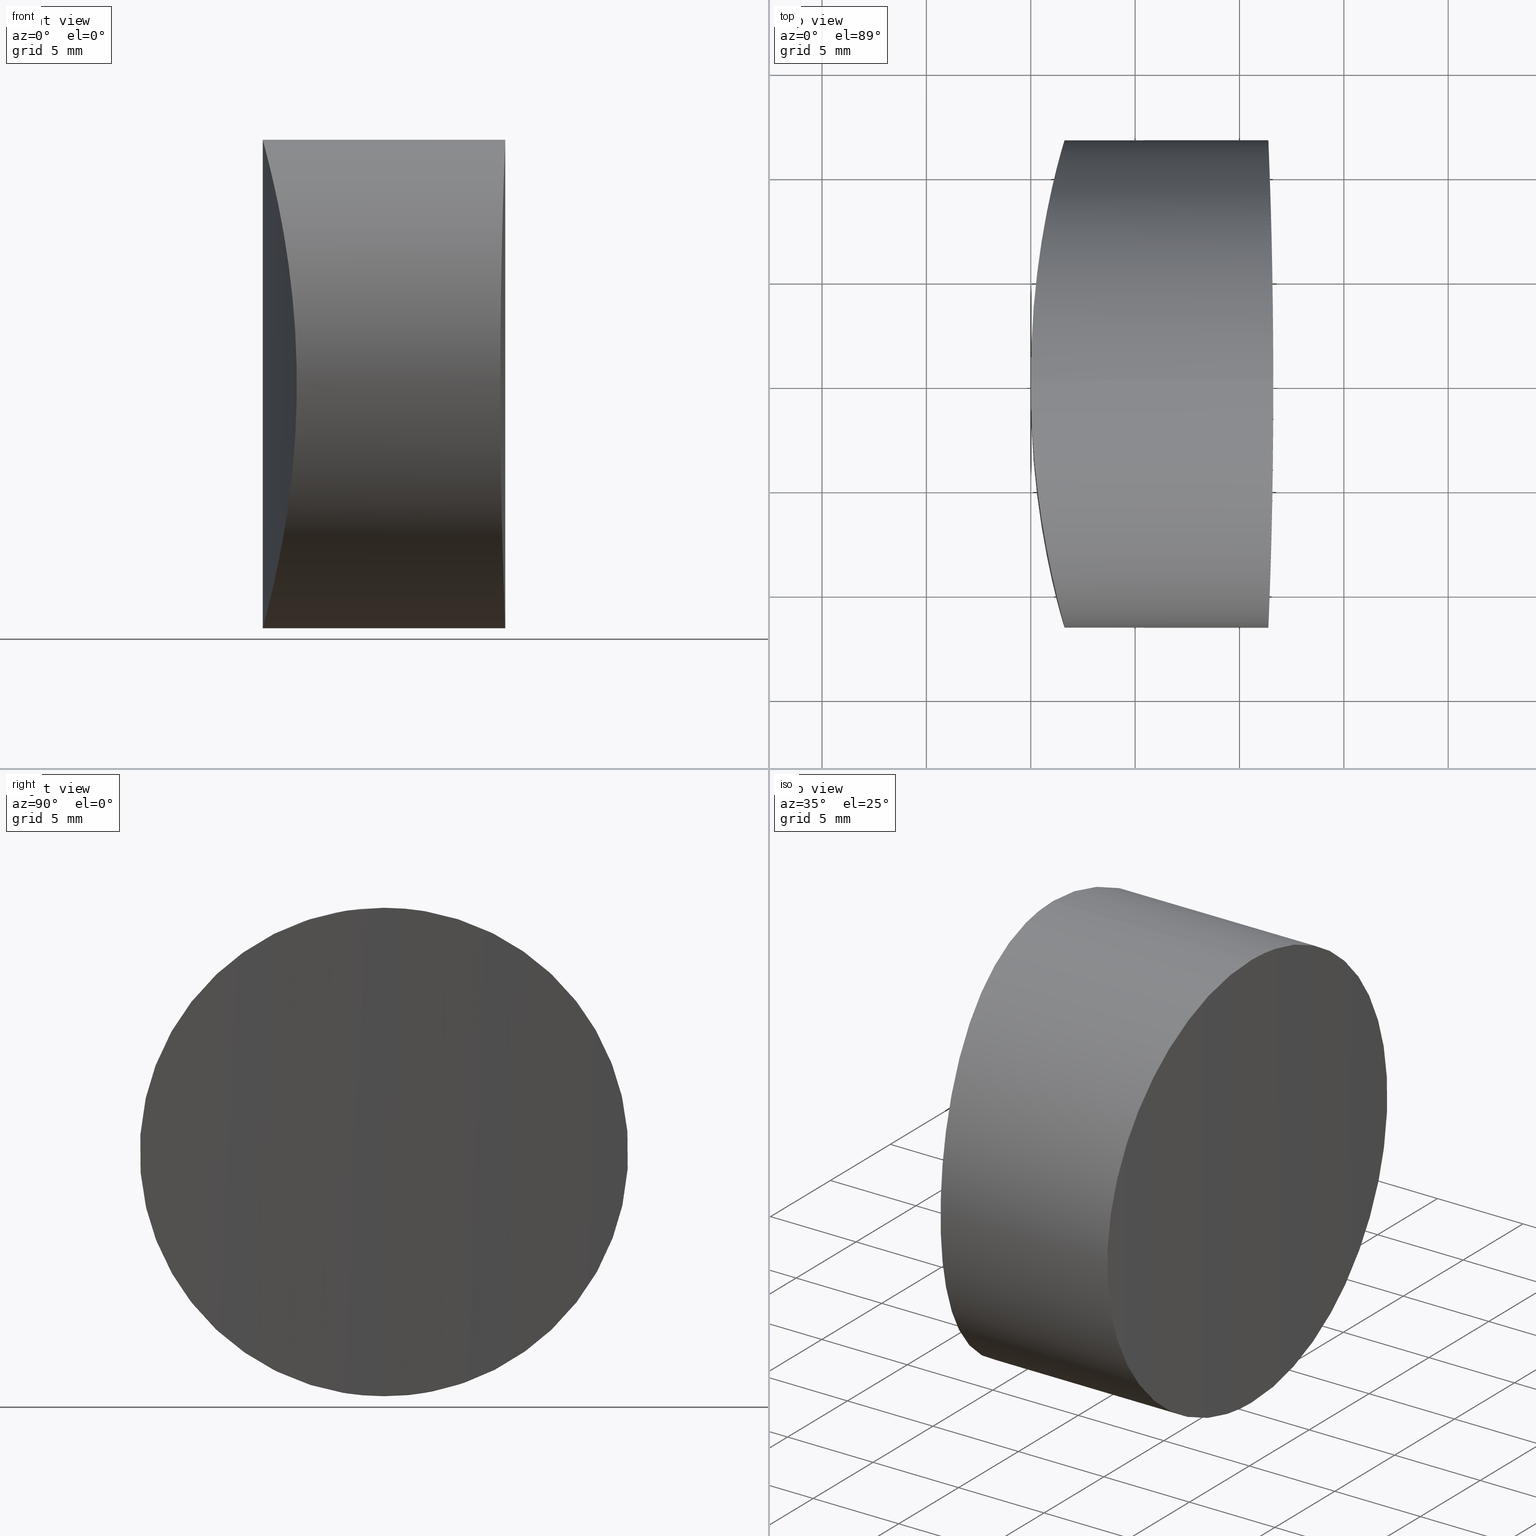
[diagram: canonical four-view strip — front | top / right | iso, engineering-drawing reading convention]
A machine part, canonical four-view strip (front | top / right | iso — engineering-drawing reading convention). The complete STEP part file that produces these views, byte-faithful:
ISO-10303-21;
HEADER;
FILE_DESCRIPTION (( 'STEP AP203' ),
    '1' );
FILE_NAME ('159016.STEP',
    '2024-12-10T03:03:37',
    ( '' ),
    ( '' ),
    'SwSTEP 2.0',
    'SolidWorks 2020',
    '' );
FILE_SCHEMA (( 'CONFIG_CONTROL_DESIGN' ));
ENDSEC;

DATA;
#1 = CARTESIAN_POINT ( 'NONE',  ( 11.50834122666624282, -8.000445361001547795, 20.24566114425831032 ) ) ;
#2 = CARTESIAN_POINT ( 'NONE',  ( 11.62000000000002586, -0.7726043555792642126, 23.39999999999999503 ) ) ;
#3 = CARTESIAN_POINT ( 'NONE',  ( 0.3116643519996714629, -5.198488700896360726, 1.190362278175256749 ) ) ;
#4 = APPROVAL_PERSON_ORGANIZATION ( #310, #93, #198 ) ;
#5 = FACE_OUTER_BOUND ( 'NONE', #322, .T. ) ;
#6 = CARTESIAN_POINT ( 'NONE',  ( 0.02115179972341110770, -1.539396594609847346, 0.07653723740194499914 ) ) ;
#7 = CARTESIAN_POINT ( 'NONE',  ( 11.48476533640021913, -8.802847334992053518, 3.983236644855716158 ) ) ;
#8 = CARTESIAN_POINT ( 'NONE',  ( 0.02116038784417108298, -1.543215929523041430, 23.32345793427557012 ) ) ;
#9 = CARTESIAN_POINT ( 'NONE',  ( 0.02114948640971029900, 1.539313051746196814, 23.32347106185544661 ) ) ;
#10 = VERTEX_POINT ( 'NONE', #57 ) ;
#11 = PERSON_AND_ORGANIZATION ( #233, #117 ) ;
#12 = CARTESIAN_POINT ( 'NONE',  ( 1.218692900598582263, 10.13031043477039717, 17.56618085616235092 ) ) ;
#13 = CARTESIAN_POINT ( 'NONE',  ( 1.221814119183032732, -10.15072585469899202, 17.56811078998464026 ) ) ;
#14 = CARTESIAN_POINT ( 'NONE',  ( 11.51615761494557688, 7.716763068330194208, 2.897152389055930310 ) ) ;
#15 = LINE ( 'NONE', #354, #210 ) ;
#16 = CARTESIAN_POINT ( 'NONE',  ( 1.522361716051486402, -11.30055644154991867, 8.644748249691609487 ) ) ;
#17 = CARTESIAN_POINT ( 'NONE',  ( 11.53160617311855418, 7.120677190864826756, 2.408363187374036762 ) ) ;
#18 = CARTESIAN_POINT ( 'NONE',  ( 0.8626793191239651160, 8.544097108817332753, 3.697979493518696259 ) ) ;
#19 = CARTESIAN_POINT ( 'NONE',  ( 0.000000000000000000, 0.000000000000000000, 0.000000000000000000 ) ) ;
#20 = CARTESIAN_POINT ( 'NONE',  ( 11.42698976765459129, 10.51596331414600272, 16.88574715239465718 ) ) ;
#21 = DIRECTION ( 'NONE',  ( 0.000000000000000000, 0.000000000000000000, 1.000000000000000000 ) ) ;
#22 = CARTESIAN_POINT ( 'NONE',  ( 1.021114225973074330, 9.285482889198734213, 4.571445310416136110 ) ) ;
#23 = APPROVAL_ROLE ( '' ) ;
#24 = CC_DESIGN_APPROVAL ( #252, ( #331 ) ) ;
#25 = APPLICATION_CONTEXT ( 'configuration controlled 3d designs of mechanical parts and assemblies' ) ;
#26 = CC_DESIGN_PERSON_AND_ORGANIZATION_ASSIGNMENT ( #62, #348, ( #331 ) ) ;
#27 = CARTESIAN_POINT ( 'NONE',  ( 11.56079088785816289, 5.857446924342490036, 1.543023094200554057 ) ) ;
#28 = CARTESIAN_POINT ( 'NONE',  ( 11.55325851795774028, -6.190341427076928582, 1.764335512864516176 ) ) ;
#29 = CARTESIAN_POINT ( 'NONE',  ( 11.39308593814373793, -11.39769493783963483, 14.37040233746650664 ) ) ;
#30 = ADVANCED_FACE ( 'NONE', ( #5 ), #231, .T. ) ;
#31 = CARTESIAN_POINT ( 'NONE',  ( 11.40532295411183483, -11.08654240936753155, 7.941557677430229667 ) ) ;
#32 = CARTESIAN_POINT ( 'NONE',  ( 11.41036888833714968, -10.95595335955898442, 7.576415337182124787 ) ) ;
#33 = CC_DESIGN_SECURITY_CLASSIFICATION ( #320, ( #74 ) ) ;
#34 = CARTESIAN_POINT ( 'NONE',  ( 11.56079088785828013, -5.857446924342498917, 21.85697690579944563 ) ) ;
#35 = CARTESIAN_POINT ( 'NONE',  ( 0.3116326326036396588, 5.198225801661237711, 22.20976484781792237 ) ) ;
#36 = CARTESIAN_POINT ( 'NONE',  ( 0.7029013807431773175, -7.721563527596935650, 2.901477486518047932 ) ) ;
#37 = AXIS2_PLACEMENT_3D ( 'NONE', #52, #83, #21 ) ;
#38 = CARTESIAN_POINT ( 'NONE',  ( 1.020827543885018729, -9.291257141828978661, 4.547890616966048682 ) ) ;
#39 = COORDINATED_UNIVERSAL_TIME_OFFSET ( 8, 0, .AHEAD. ) ;
#40 = CARTESIAN_POINT ( 'NONE',  ( 1.020747586187598310, 9.290898770119232708, 18.85256965556117592 ) ) ;
#41 = CARTESIAN_POINT ( 'NONE',  ( 1.549607479163048973, -11.39904056826204481, 14.36420531174572268 ) ) ;
#42 = CARTESIAN_POINT ( 'NONE',  ( 11.44012078059676796, 10.15697506044739740, 17.55744998751557162 ) ) ;
#43 = CARTESIAN_POINT ( 'NONE',  ( 0.08153112641984214259, 2.664000721158894081, 23.09908949025892611 ) ) ;
#44 = CARTESIAN_POINT ( 'NONE',  ( 0.2005415466080526232, 4.148546924852759332, 0.7535663226522079094 ) ) ;
#45 = CARTESIAN_POINT ( 'NONE',  ( 1.350191257869729489, 10.65380167925032673, 16.55090322725281382 ) ) ;
#46 = DIRECTION ( 'NONE',  ( 0.000000000000000000, 0.000000000000000000, 1.000000000000000000 ) ) ;
#47 = CARTESIAN_POINT ( 'NONE',  ( 0.1078927249292253865, 3.055759509700266552, 0.3995776518490129492 ) ) ;
#48 = CARTESIAN_POINT ( 'NONE',  ( 1.612240629715262052, 11.62354974842927824, 10.16129380057670240 ) ) ;
#49 = ADVANCED_BREP_SHAPE_REPRESENTATION ( '159016', ( #77, #296 ), #116 ) ;
#50 = DIRECTION ( 'NONE',  ( 1.000000000000000000, 0.000000000000000000, 0.000000000000000000 ) ) ;
#51 = CARTESIAN_POINT ( 'NONE',  ( 1.461367988624717507, 11.07591200583148883, 15.48962973388129960 ) ) ;
#52 = CARTESIAN_POINT ( 'NONE',  ( 23.39999999999999858, -6.222475526406026341E-15, 11.69999999999999751 ) ) ;
#53 = CALENDAR_DATE ( 2024, 10, 12 ) ;
#54 = B_SPLINE_CURVE_WITH_KNOTS ( 'NONE', 3,
 ( #200, #145, #6, #283, #61, #286, #124, #3, #319, #65, #232, #36, #357, #181, #38, #325, #76, #152, #206, #174, #126, #16, #102, #265, #297, #158, #360, #41, #108, #155, #353, #267, #13, #211, #329, #204, #291, #79, #269, #133, #214, #292, #150, #72, #98, #71, #68, #8, #129, #323 ),
 .UNSPECIFIED., .F., .F.,
 ( 4, 2, 2, 2, 2, 2, 2, 2, 2, 2, 2, 2, 2, 2, 2, 2, 2, 2, 2, 2, 2, 2, 2, 2, 4 ),
 ( 0.01836548850541894554, 0.02066126398292433136, 0.02180915172167702254, 0.02295703946042971372, 0.02525281493793509954, 0.02640070267668779072, 0.02754859041544047843, 0.02984436589294586079, 0.03099225363169855196, 0.03214014137045124314, 0.03328802910920393432, 0.03443591684795662550, 0.03673169232546200091, 0.03902746780296738327, 0.04017535554172008139, 0.04132324328047276563, 0.04361901875797814798, 0.04476690649673083916, 0.04591479423548353034, 0.04821056971298891269, 0.04935845745174159693, 0.05050634519049428117, 0.05165423292924697929, 0.05280212066799966353, 0.05509789614550504588 ),
 .UNSPECIFIED. ) ;
#55 = CARTESIAN_POINT ( 'NONE',  ( 0.5985449417980786002, 7.153556633235333528, 2.409837950342180957 ) ) ;
#56 = CARTESIAN_POINT ( 'NONE',  ( 11.39684395755928392, 11.30325945933214626, 8.654900918863649650 ) ) ;
#57 = CARTESIAN_POINT ( 'NONE',  ( 2.825357735624603731E-15, 0.000000000000000000, 23.39999999999999858 ) ) ;
#58 = CARTESIAN_POINT ( 'NONE',  ( 11.62000000000001876, -6.222475526406026341E-15, 23.39999999999999858 ) ) ;
#59 = EDGE_CURVE ( 'NONE', #199, #97, #153, .T. ) ;
#60 = CARTESIAN_POINT ( 'NONE',  ( 11.39661587952665833, -11.30902880729543192, 8.676231040150291562 ) ) ;
#61 = CARTESIAN_POINT ( 'NONE',  ( 0.1064519128507704498, -3.035780601069037132, 0.3941506981484312888 ) ) ;
#62 = PERSON_AND_ORGANIZATION ( #233, #117 ) ;
#63 = ORIENTED_EDGE ( 'NONE', *, *, #289, .F. ) ;
#64 = EDGE_LOOP ( 'NONE', ( #63, #318, #317, #127 ) ) ;
#65 = CARTESIAN_POINT ( 'NONE',  ( 0.5469979845961249199, -6.820285741709247951, 2.185839507605463528 ) ) ;
#66 = EDGE_CURVE ( 'NONE', #199, #10, #15, .T. ) ;
#67 = CARTESIAN_POINT ( 'NONE',  ( 11.49258236131441535, -8.545661225290622554, 3.699554750029844463 ) ) ;
#68 = CARTESIAN_POINT ( 'NONE',  ( 0.08243284053290254876, -2.678904931896245678, 23.09572467220113623 ) ) ;
#69 = ORIENTED_EDGE ( 'NONE', *, *, #171, .T. ) ;
#70 = PRODUCT_DEFINITION_SHAPE ( 'NONE', 'NONE',  #331 ) ;
#71 = CARTESIAN_POINT ( 'NONE',  ( 0.1078811615868372209, -3.055596207715884916, 23.00046582037515464 ) ) ;
#72 = CARTESIAN_POINT ( 'NONE',  ( 0.2005206989076388779, -4.148331975707988839, 22.64651442230587719 ) ) ;
#73 = APPROVAL_STATUS ( 'not_yet_approved' ) ;
#74 = PRODUCT_DEFINITION_FORMATION_WITH_SPECIFIED_SOURCE ( '�κ�', '', #284, .NOT_KNOWN. ) ;
#75 = CARTESIAN_POINT ( 'NONE',  ( 0.7558190034718494932, 8.003059787080228915, 20.24312312701330541 ) ) ;
#76 = CARTESIAN_POINT ( 'NONE',  ( 1.218775036194221340, -10.13064655305768547, 5.834398369266911466 ) ) ;
#77 = MANIFOLD_SOLID_BREP ( '�г�-����1', #315 ) ;
#78 = CARTESIAN_POINT ( 'NONE',  ( 11.38087361875267334, 11.70000080604043369, 10.92740899479687045 ) ) ;
#79 = CARTESIAN_POINT ( 'NONE',  ( 0.7036711933648762685, -7.739240291017467577, 20.50737220546450601 ) ) ;
#80 = CARTESIAN_POINT ( 'NONE',  ( 11.53146966886117042, 7.148536806155499690, 20.99405426441436973 ) ) ;
#81 = LINE ( 'NONE', #107, #146 ) ;
#82 = CARTESIAN_POINT ( 'NONE',  ( 11.39293185485684390, 11.40155386496813428, 14.35324159360317964 ) ) ;
#83 = DIRECTION ( 'NONE',  ( -1.000000000000000000, 0.000000000000000000, 0.000000000000000000 ) ) ;
#84 = CC_DESIGN_PERSON_AND_ORGANIZATION_ASSIGNMENT ( #246, #164, ( #74 ) ) ;
#85 = PERSON_AND_ORGANIZATION_ROLE ( 'design_owner' ) ;
#86 = CC_DESIGN_PERSON_AND_ORGANIZATION_ASSIGNMENT ( #138, #85, ( #284 ) ) ;
#87 = PERSON_AND_ORGANIZATION ( #233, #117 ) ;
#88 = CARTESIAN_POINT ( 'NONE',  ( 0.02116270335229388302, 1.543299897903277484, 0.07655036568056472479 ) ) ;
#89 = DATE_AND_TIME ( #254, #104 ) ;
#90 = CARTESIAN_POINT ( 'NONE',  ( 11.60404212273296842, -3.045106953394411953, 0.3967426779261322145 ) ) ;
#91 = APPROVAL_STATUS ( 'not_yet_approved' ) ;
#92 = CARTESIAN_POINT ( 'NONE',  ( 11.41552253628786673, -10.82245619300337758, 16.19429616134717875 ) ) ;
#93 = APPROVAL ( #91, 'δָ��' ) ;
#94 = CARTESIAN_POINT ( 'NONE',  ( 11.38087368467681060, -11.69999919394684973, 10.92738458188363992 ) ) ;
#95 = CARTESIAN_POINT ( 'NONE',  ( 11.38400256966155233, -11.62421625465258224, 13.23674676673737949 ) ) ;
#96 = CARTESIAN_POINT ( 'NONE',  ( 11.60427020165491641, -3.023761266420981197, 23.00903088140642083 ) ) ;
#97 = VERTEX_POINT ( 'NONE', #149 ) ;
#98 = CARTESIAN_POINT ( 'NONE',  ( 0.1668844223539996119, -3.789355694864593893, 22.77600918019988896 ) ) ;
#99 = DATE_AND_TIME ( #130, #327 ) ;
#100 = CARTESIAN_POINT ( 'NONE',  ( 0.1994240046638298403, 4.137282552904039790, 22.65077943517297143 ) ) ;
#101 = DIRECTION ( 'NONE',  ( -1.000000000000000000, 0.000000000000000000, 0.000000000000000000 ) ) ;
#102 = CARTESIAN_POINT ( 'NONE',  ( 1.548705905361870583, -11.39579333191930210, 9.021389577117204794 ) ) ;
#103 = CARTESIAN_POINT ( 'NONE',  ( 11.61687543374016052, 1.532289136282803277, 0.07577626139362167446 ) ) ;
#104 = LOCAL_TIME ( 11, 3, 37.00000000000000000, #222 ) ;
#105 = CARTESIAN_POINT ( 'NONE',  ( 1.308349711008734761, 10.49062129808797117, 16.89443280080960008 ) ) ;
#106 = CARTESIAN_POINT ( 'NONE',  ( 0.1669019346921626346, 3.789553965936834246, 0.6240579557779247777 ) ) ;
#107 = CARTESIAN_POINT ( 'NONE',  ( 23.39999999999999858, -4.789638771403623845E-15, -1.734723475976807094E-15 ) ) ;
#108 = CARTESIAN_POINT ( 'NONE',  ( 1.523814740385370126, -11.30584735335096092, 14.73577845390030205 ) ) ;
#109 = CARTESIAN_POINT ( 'NONE',  ( 11.57327940585887482, 5.183483643176358235, 22.19609269913008021 ) ) ;
#110 = CARTESIAN_POINT ( 'NONE',  ( 11.41552228528090218, 10.82245604794576543, 7.205703894495782080 ) ) ;
#111 = CARTESIAN_POINT ( 'NONE',  ( 1.221896367787552506, 10.15106140769250054, 5.832464699973532340 ) ) ;
#112 = DATE_AND_TIME ( #335, #166 ) ;
#113 = DIRECTION ( 'NONE',  ( 0.000000000000000000, 0.000000000000000000, 1.000000000000000000 ) ) ;
#114 = UNCERTAINTY_MEASURE_WITH_UNIT (LENGTH_MEASURE( 1.000000000000000082E-05 ), #189, 'distance_accuracy_value', 'NONE');
#115 = LINE ( 'NONE', #247, #368 ) ;
#116 =( GEOMETRIC_REPRESENTATION_CONTEXT ( 3 ) GLOBAL_UNCERTAINTY_ASSIGNED_CONTEXT ( ( #114 ) ) GLOBAL_UNIT_ASSIGNED_CONTEXT ( ( #189, #245, #273 ) ) REPRESENTATION_CONTEXT ( 'NONE', 'WORKASPACE' ) );
#117 = ORGANIZATION ( 'δָ��', 'δָ��', '' ) ;
#118 = CARTESIAN_POINT ( 'NONE',  ( 11.59556918225623789, -3.758435733865214790, 22.78654466041231430 ) ) ;
#119 = CARTESIAN_POINT ( 'NONE',  ( 11.44012078059702908, -10.15697506044741516, 5.842550012484416300 ) ) ;
#120 = CARTESIAN_POINT ( 'NONE',  ( 11.60404212273291868, 3.045106953394405735, 23.00325732207386764 ) ) ;
#121 = CARTESIAN_POINT ( 'NONE',  ( 11.51615761494572787, -7.716763068330204867, 20.50284761094407315 ) ) ;
#122 = CC_DESIGN_APPROVAL ( #302, ( #74 ) ) ;
#123 = CARTESIAN_POINT ( 'NONE',  ( 11.39684395755951662, -11.30325945933216047, 14.74509908113634893 ) ) ;
#124 = CARTESIAN_POINT ( 'NONE',  ( 0.1994450068612352300, -4.137499626896718574, 0.7493018810777755112 ) ) ;
#125 = CARTESIAN_POINT ( 'NONE',  ( 11.59052655248877528, -4.123578688067463638, 22.65595562849646072 ) ) ;
#126 = CARTESIAN_POINT ( 'NONE',  ( 1.461437354802844757, -11.07617006637357449, 7.911122091279811031 ) ) ;
#127 = ORIENTED_EDGE ( 'NONE', *, *, #66, .F. ) ;
#128 = CARTESIAN_POINT ( 'NONE',  ( 0.1064405045159608348, 3.035618192479681454, 23.00589216645595414 ) ) ;
#129 = CARTESIAN_POINT ( 'NONE',  ( 2.801984989517225522E-15, -0.7765011190128663365, 23.40000000000000213 ) ) ;
#130 = CALENDAR_DATE ( 2024, 10, 12 ) ;
#131 = CARTESIAN_POINT ( 'NONE',  ( 0.4507289748297408916, 6.196165611642835636, 1.767973390765267272 ) ) ;
#132 = CARTESIAN_POINT ( 'NONE',  ( 11.48476533640005393, 8.802847334992039308, 19.41676335514428331 ) ) ;
#133 = CARTESIAN_POINT ( 'NONE',  ( 0.4506842129636313143, -6.195859913576227562, 21.63221658213782561 ) ) ;
#134 = CARTESIAN_POINT ( 'NONE',  ( 11.39308593814356563, 11.39769493783962595, 9.029597662533488389 ) ) ;
#135 = CARTESIAN_POINT ( 'NONE',  ( 0.7037346652360682020, 7.739585294753251077, 2.892927283743395694 ) ) ;
#136 = CARTESIAN_POINT ( 'NONE',  ( 11.38087368467662941, 11.69999919394682841, 12.47261541811635333 ) ) ;
#137 = CARTESIAN_POINT ( 'NONE',  ( 1.427922554167355695, 10.95106565205551341, 7.563481835842394752 ) ) ;
#138 = PERSON_AND_ORGANIZATION ( #233, #117 ) ;
#139 = CARTESIAN_POINT ( 'NONE',  ( 11.44765544686502778, 9.935666636388186035, 5.509661993298701432 ) ) ;
#140 = CARTESIAN_POINT ( 'NONE',  ( 11.56026584340834873, -5.858323865396935837, 1.565084799766218282 ) ) ;
#141 = CC_DESIGN_PERSON_AND_ORGANIZATION_ASSIGNMENT ( #356, #178, ( #74 ) ) ;
#142 = CARTESIAN_POINT ( 'NONE',  ( 11.38400097520130672, -11.62422236234014328, 10.16770093322000434 ) ) ;
#143 = CARTESIAN_POINT ( 'NONE',  ( 11.60779734390793116, -2.670410794392496179, 0.3023070594759251772 ) ) ;
#144 = EDGE_LOOP ( 'NONE', ( #358, #347 ) ) ;
#145 = CARTESIAN_POINT ( 'NONE',  ( 5.393482291641757409E-16, -0.7765436336446470689, -2.454701481142962383E-15 ) ) ;
#146 = VECTOR ( 'NONE', #262, 1000.000000000000000 ) ;
#147 = ORIENTED_EDGE ( 'NONE', *, *, #307, .F. ) ;
#148 = EDGE_CURVE ( 'NONE', #97, #258, #81, .T. ) ;
#149 = CARTESIAN_POINT ( 'NONE',  ( 11.62000000000001876, -4.789638771403623845E-15, -1.734723475976807094E-15 ) ) ;
#150 = CARTESIAN_POINT ( 'NONE',  ( 0.2749762479042691110, -4.850939060395880631, 22.35378929821485627 ) ) ;
#151 = ORIENTED_EDGE ( 'NONE', *, *, #66, .T. ) ;
#152 = CARTESIAN_POINT ( 'NONE',  ( 1.308429559035131584, -10.49093614518938011, 6.506201691344067228 ) ) ;
#153 = B_SPLINE_CURVE_WITH_KNOTS ( 'NONE', 3,
 ( #287, #2, #170, #229, #96, #118, #125, #202, #34, #201, #197, #121, #1, #195, #316, #225, #290, #321, #92, #312, #123, #29, #95, #349, #94, #142, #256, #60, #31, #32, #226, #119, #172, #260, #7, #67, #173, #343, #28, #140, #341, #255, #257, #90, #143, #370, #176, #157 ),
 .UNSPECIFIED., .F., .F.,
 ( 4, 2, 2, 2, 2, 2, 2, 2, 2, 1, 2, 2, 2, 2, 2, 2, 2, 2, 2, 2, 2, 1, 2, 2, 4 ),
 ( -0.03655824992060086043, -0.03427335930056329971, -0.03313091399054451242, -0.03198846868052573206, -0.02970357806048816787, -0.02856113275046939098, -0.02741868744045061063, -0.02513379682041305338, -0.02399135151039427996, -0.02284890620037550654, -0.02170646089035673312, -0.02056401558033795970, -0.01827912496030040940, -0.01599423434026286256, -0.01485178903024408567, -0.01370934372022531572, -0.01142445310018776541, -0.01028200779016899200, -0.009139562480150218576, -0.006854671860112661330, -0.005712226550093884442, -0.004569781240075107553, -0.003427335930056327196, -0.002284890620037546838, 0.000000000000000000 ),
 .UNSPECIFIED. ) ;
#154 = CARTESIAN_POINT ( 'NONE',  ( 1.170705553863944148, 9.932451469880964723, 17.89547584589141138 ) ) ;
#155 = CARTESIAN_POINT ( 'NONE',  ( 1.462974869590095928, -11.08189049689003269, 15.47224577849542548 ) ) ;
#156 = CARTESIAN_POINT ( 'NONE',  ( 11.46175348887641832, 9.520894175375524071, 18.51091328567612138 ) ) ;
#157 = CARTESIAN_POINT ( 'NONE',  ( 11.62000000000001876, -4.789638771403623845E-15, -1.734723475976807094E-15 ) ) ;
#158 = CARTESIAN_POINT ( 'NONE',  ( 1.634233368835979361, -11.69998044991746866, 12.47683278729245870 ) ) ;
#159 = CARTESIAN_POINT ( 'NONE',  ( 4.805500254089395614E-16, 0.7765436341366765971, -1.856319761293756538E-15 ) ) ;
#160 = DESIGN_CONTEXT ( 'detailed design', #25, 'design' ) ;
#161 = CARTESIAN_POINT ( 'NONE',  ( 1.612179083958677817, 11.62336436912982052, 13.24388462309954306 ) ) ;
#162 = DATE_AND_TIME ( #351, #227 ) ;
#163 = CARTESIAN_POINT ( 'NONE',  ( 11.38400256966137292, 11.62421625465257513, 10.16325323326261376 ) ) ;
#164 = PERSON_AND_ORGANIZATION_ROLE ( 'design_supplier' ) ;
#165 = DATE_TIME_ROLE ( 'creation_date' ) ;
#166 = LOCAL_TIME ( 11, 3, 37.00000000000000000, #364 ) ;
#167 = CARTESIAN_POINT ( 'NONE',  ( 11.62000000000001876, -6.222475526406026341E-15, 23.39999999999999858 ) ) ;
#168 = CARTESIAN_POINT ( 'NONE',  ( 0.2750043204754760717, 4.851185740215609776, 1.046322289734502364 ) ) ;
#169 = DIRECTION ( 'NONE',  ( -0.000000000000000000, -0.000000000000000000, -1.000000000000000000 ) ) ;
#170 = CARTESIAN_POINT ( 'NONE',  ( 11.61687543374019249, -1.532289136282811048, 23.32422373860636355 ) ) ;
#171 = EDGE_CURVE ( 'NONE', #10, #258, #281, .T. ) ;
#172 = CARTESIAN_POINT ( 'NONE',  ( 11.46175348887667411, -9.520894175375538282, 4.889086714323872762 ) ) ;
#173 = CARTESIAN_POINT ( 'NONE',  ( 11.51596640599131405, -7.736920899246567451, 2.890240928400828579 ) ) ;
#174 = CARTESIAN_POINT ( 'NONE',  ( 1.426772311235827928, -10.94672059868823055, 7.552220241446521598 ) ) ;
#175 = APPROVAL_ROLE ( '' ) ;
#176 = CARTESIAN_POINT ( 'NONE',  ( 11.62000000000002409, -0.7726023242529858059, -1.914294460794716400E-15 ) ) ;
#177 = PERSON_AND_ORGANIZATION ( #233, #117 ) ;
#178 = PERSON_AND_ORGANIZATION_ROLE ( 'creator' ) ;
#179 = LOCAL_TIME ( 11, 3, 37.00000000000000000, #191 ) ;
#180 = CARTESIAN_POINT ( 'NONE',  ( 0.9147553647915952491, 8.807990095218160675, 19.43853896792542812 ) ) ;
#181 = CARTESIAN_POINT ( 'NONE',  ( 0.9148307797964319033, -8.808348260449010425, 3.961864767983786617 ) ) ;
#182 = CARTESIAN_POINT ( 'NONE',  ( 11.40556731613080110, 11.08023653362849714, 7.923141361162237217 ) ) ;
#183 = CARTESIAN_POINT ( 'NONE',  ( 11.53916509311484972, 6.810911667491555299, 2.179104646004374146 ) ) ;
#184 = CARTESIAN_POINT ( 'NONE',  ( 1.523874769953467379, 11.30606575696013572, 8.665032780185251582 ) ) ;
#185 = FACE_OUTER_BOUND ( 'NONE', #64, .T. ) ;
#186 = CARTESIAN_POINT ( 'NONE',  ( 0.3158295003920022492, 5.194830850673825218, 1.209571113483522753 ) ) ;
#187 = AXIS2_PLACEMENT_3D ( 'NONE', #333, #308, #268 ) ;
#188 = CARTESIAN_POINT ( 'NONE',  ( 1.548650600130574873, 11.39559380110435782, 14.37945641259225305 ) ) ;
#189 =( LENGTH_UNIT ( ) NAMED_UNIT ( * ) SI_UNIT ( .MILLI., .METRE. ) );
#190 = APPLICATION_PROTOCOL_DEFINITION ( 'international standard', 'config_control_design', 1994, #25 ) ;
#191 = COORDINATED_UNIVERSAL_TIME_OFFSET ( 8, 0, .AHEAD. ) ;
#192 = CC_DESIGN_APPROVAL ( #93, ( #320 ) ) ;
#193 = CARTESIAN_POINT ( 'NONE',  ( 0.4036078499771330597, 5.866788903798929589, 1.570036833806668586 ) ) ;
#194 = CARTESIAN_POINT ( 'NONE',  ( 11.59556918225616506, 3.758435733865212569, 0.6134553395876780613 ) ) ;
#195 = CARTESIAN_POINT ( 'NONE',  ( 11.48495716435185621, -8.809760227365272200, 19.43691968445856944 ) ) ;
#196 = B_SPLINE_CURVE_WITH_KNOTS ( 'NONE', 3,
 ( #359, #303, #103, #208, #270, #194, #369, #213, #27, #183, #17, #14, #217, #309, #340, #139, #253, #328, #110, #182, #56, #134, #163, #78, #136, #298, #82, #330, #300, #337, #20, #42, #156, #365, #132, #243, #362, #80, #244, #363, #109, #259, #313, #120, #342, #224, #288, #58 ),
 .UNSPECIFIED., .F., .F.,
 ( 4, 2, 2, 2, 2, 2, 2, 2, 2, 1, 2, 2, 2, 2, 2, 2, 2, 2, 2, 2, 2, 1, 2, 2, 4 ),
 ( 0.000000000000000000, 0.002284896627472704240, 0.003427344941209056577, 0.004569793254945408480, 0.006854689882418111418, 0.007997138196154461587, 0.009139586509890813490, 0.01142448313736351209, 0.01256693145109986573, 0.01370937976483621763, 0.01485182807857256954, 0.01599427639230891623, 0.01827917301978161657, 0.02056406964725431691, 0.02170651796099066361, 0.02284896627472701031, 0.02513386290219970717, 0.02627631121593605040, 0.02741875952967239710, 0.02970365615714509397, 0.03084610447088143720, 0.03198855278461777696, 0.03313100109835412366, 0.03427344941209047036, 0.03655834603956315682 ),
 .UNSPECIFIED. ) ;
#197 = CARTESIAN_POINT ( 'NONE',  ( 11.53160617311869451, -7.120677190864837414, 20.99163681262595560 ) ) ;
#198 = APPROVAL_ROLE ( '' ) ;
#199 = VERTEX_POINT ( 'NONE', #167 ) ;
#200 = CARTESIAN_POINT ( 'NONE',  ( 5.214281190802850347E-16, 2.070248622887366721E-31, -2.123988307714478201E-15 ) ) ;
#201 = CARTESIAN_POINT ( 'NONE',  ( 11.53916509311498295, -6.810911667491563293, 21.22089535399562621 ) ) ;
#202 = CARTESIAN_POINT ( 'NONE',  ( 11.57391547999706205, -5.185742994555067042, 22.21596544856884137 ) ) ;
#203 = ORIENTED_EDGE ( 'NONE', *, *, #240, .F. ) ;
#204 = CARTESIAN_POINT ( 'NONE',  ( 0.9157846222239869327, -8.799390160919511317, 19.42056987458116524 ) ) ;
#205 = SECURITY_CLASSIFICATION_LEVEL ( 'unclassified' ) ;
#206 = CARTESIAN_POINT ( 'NONE',  ( 1.350269273977950490, -10.65410426107503561, 6.849759677567113236 ) ) ;
#207 = CARTESIAN_POINT ( 'NONE',  ( 0.7028378868721122386, 7.721217956515477709, 20.49882495236387925 ) ) ;
#208 = CARTESIAN_POINT ( 'NONE',  ( 11.60795146724236027, 2.653233343325327453, 0.2984441979853336702 ) ) ;
#209 = CC_DESIGN_DATE_AND_TIME_ASSIGNMENT ( #112, #250, ( #320 ) ) ;
#210 = VECTOR ( 'NONE', #299, 1000.000000000000000 ) ;
#211 = CARTESIAN_POINT ( 'NONE',  ( 1.073035159634678992, -9.514780494102001995, 18.51941654793526126 ) ) ;
#212 = APPLICATION_CONTEXT ( 'configuration controlled 3d designs of mechanical parts and assemblies' ) ;
#213 = CARTESIAN_POINT ( 'NONE',  ( 11.57391547999695725, 5.185742994555058161, 1.184034551431151661 ) ) ;
#214 = CARTESIAN_POINT ( 'NONE',  ( 0.4035677270769945091, -5.866498795797997268, 21.83013036535875528 ) ) ;
#215 = CARTESIAN_POINT ( 'NONE',  ( 5.214281190802850347E-16, 2.070248622887366721E-31, -2.123988307714478201E-15 ) ) ;
#216 = FACE_OUTER_BOUND ( 'NONE', #293, .T. ) ;
#217 = CARTESIAN_POINT ( 'NONE',  ( 11.50834122666609005, 8.000445361001535360, 3.154338855741687375 ) ) ;
#218 = CARTESIAN_POINT ( 'NONE',  ( 1.073116222045250145, 9.515134986389449878, 4.881077010206261058 ) ) ;
#219 = CARTESIAN_POINT ( 'NONE',  ( 42.69899999999999807, 0.000000000000000000, 23.39999999999999858 ) ) ;
#220 = ADVANCED_FACE ( 'NONE', ( #241 ), #271, .T. ) ;
#221 = CARTESIAN_POINT ( 'NONE',  ( 5.214281190802850347E-16, 2.070248622887366721E-31, -2.123988307714478201E-15 ) ) ;
#222 = COORDINATED_UNIVERSAL_TIME_OFFSET ( 8, 0, .AHEAD. ) ;
#223 = ORIENTED_EDGE ( 'NONE', *, *, #289, .T. ) ;
#224 = CARTESIAN_POINT ( 'NONE',  ( 11.61687373225815989, 1.536756785441782069, 23.32421486774568109 ) ) ;
#225 = CARTESIAN_POINT ( 'NONE',  ( 11.44765544686516989, -9.935666636388200246, 17.89033800670130603 ) ) ;
#226 = CARTESIAN_POINT ( 'NONE',  ( 11.42698976765477958, -10.51596331414601515, 6.514252847605339625 ) ) ;
#227 = LOCAL_TIME ( 11, 3, 37.00000000000000000, #39 ) ;
#228 = DATE_AND_TIME ( #53, #179 ) ;
#229 = CARTESIAN_POINT ( 'NONE',  ( 11.60795146724241533, -2.653233343325335003, 23.10155580201466208 ) ) ;
#230 = APPROVAL_DATE_TIME ( #228, #252 ) ;
#231 = CYLINDRICAL_SURFACE ( 'NONE', #352, 286.3489999999999895 ) ;
#232 = CARTESIAN_POINT ( 'NONE',  ( 0.5984160714061161901, -7.129914124341361514, 2.415557835255714991 ) ) ;
#233 = PERSON ( 'δָ��', 'δָ��', 'δָ��', ('δָ��'), ('δָ��'), ('δָ��') ) ;
#234 = CC_DESIGN_DATE_AND_TIME_ASSIGNMENT ( #162, #165, ( #331 ) ) ;
#235 = CARTESIAN_POINT ( 'NONE',  ( 2.825357735624603731E-15, 0.000000000000000000, 23.39999999999999858 ) ) ;
#236 = AXIS2_PLACEMENT_3D ( 'NONE', #355, #101, #46 ) ;
#237 = COORDINATED_UNIVERSAL_TIME_OFFSET ( 8, 0, .AHEAD. ) ;
#238 = CARTESIAN_POINT ( 'NONE',  ( 0.1653462536746760636, 3.772187849851454722, 22.78191203337568638 ) ) ;
#239 = CYLINDRICAL_SURFACE ( 'NONE', #236, 11.70000000000000107 ) ;
#240 = EDGE_CURVE ( 'NONE', #10, #258, #115, .T. ) ;
#241 = FACE_OUTER_BOUND ( 'NONE', #144, .T. ) ;
#242 = CARTESIAN_POINT ( 'NONE',  ( 0.5469456652271490471, 6.819961820847369793, 21.21439181113251848 ) ) ;
#243 = CARTESIAN_POINT ( 'NONE',  ( 11.49258236131425370, 8.545661225290606566, 19.70044524997015500 ) ) ;
#244 = CARTESIAN_POINT ( 'NONE',  ( 11.55325851795757330, 6.190341427076914371, 21.63566448713547175 ) ) ;
#245 =( NAMED_UNIT ( * ) PLANE_ANGLE_UNIT ( ) SI_UNIT ( $, .RADIAN. ) );
#246 = PERSON_AND_ORGANIZATION ( #233, #117 ) ;
#247 = CARTESIAN_POINT ( 'NONE',  ( 0.000000000000000000, 0.000000000000000000, 23.39999999999999858 ) ) ;
#248 = PRODUCT_RELATED_PRODUCT_CATEGORY ( 'detail', '', ( #284 ) ) ;
#249 = CARTESIAN_POINT ( 'NONE',  ( 1.463044739450946041, 11.08215025889461458, 7.928515601869896123 ) ) ;
#250 = DATE_TIME_ROLE ( 'classification_date' ) ;
#251 = CARTESIAN_POINT ( 'NONE',  ( 1.634225207824444137, 11.69995180632859544, 12.47721893051528852 ) ) ;
#252 = APPROVAL ( #306, 'δָ��' ) ;
#253 = CARTESIAN_POINT ( 'NONE',  ( 11.44064532223176478, 10.13491745630171970, 5.841680008725404605 ) ) ;
#254 = CALENDAR_DATE ( 2024, 10, 12 ) ;
#255 = CARTESIAN_POINT ( 'NONE',  ( 11.58537633924891530, -4.494301870220139605, 0.8775463936266181264 ) ) ;
#256 = CARTESIAN_POINT ( 'NONE',  ( 11.39293185485703752, -11.40155386496814316, 9.046758406396817165 ) ) ;
#257 = CARTESIAN_POINT ( 'NONE',  ( 11.59532480512462982, -3.776865433912375725, 0.6197657993729484005 ) ) ;
#258 = VERTEX_POINT ( 'NONE', #221 ) ;
#259 = CARTESIAN_POINT ( 'NONE',  ( 11.58537608720745382, 4.494301926061440966, 22.52245375146015860 ) ) ;
#260 = CARTESIAN_POINT ( 'NONE',  ( 11.46931427177826635, -9.291635875107898457, 4.579321616104107484 ) ) ;
#261 = APPROVAL_DATE_TIME ( #99, #302 ) ;
#262 = DIRECTION ( 'NONE',  ( -1.000000000000000000, 0.000000000000000000, 0.000000000000000000 ) ) ;
#263 = FACE_OUTER_BOUND ( 'NONE', #350, .T. ) ;
#264 = ORIENTED_EDGE ( 'NONE', *, *, #59, .F. ) ;
#265 = CARTESIAN_POINT ( 'NONE',  ( 1.612214532834173042, -11.62348897410736015, 10.15703470085185955 ) ) ;
#266 = ORIENTED_EDGE ( 'NONE', *, *, #148, .F. ) ;
#267 = CARTESIAN_POINT ( 'NONE',  ( 1.312541627068786187, -10.50989852101694133, 16.89792702999298513 ) ) ;
#268 = DIRECTION ( 'NONE',  ( -1.000000000000000000, 0.000000000000000000, 0.000000000000000000 ) ) ;
#269 = CARTESIAN_POINT ( 'NONE',  ( 0.5984887967096099715, -7.153224521909646860, 20.99041463831230203 ) ) ;
#270 = CARTESIAN_POINT ( 'NONE',  ( 11.60427020165485601, 3.023761266420976757, 0.3909691185935773583 ) ) ;
#271 = CYLINDRICAL_SURFACE ( 'NONE', #187, 42.69899999999999807 ) ;
#272 = CARTESIAN_POINT ( 'NONE',  ( 1.522300985675580698, 11.30033534680541685, 14.75606631645641009 ) ) ;
#273 =( NAMED_UNIT ( * ) SI_UNIT ( $, .STERADIAN. ) SOLID_ANGLE_UNIT ( ) );
#274 = APPROVAL_DATE_TIME ( #89, #93 ) ;
#275 = CARTESIAN_POINT ( 'NONE',  ( 1.549661863108937609, 11.39923671665237492, 9.036631144900734824 ) ) ;
#276 = CYLINDRICAL_SURFACE ( 'NONE', #37, 11.70000000000000107 ) ;
#277 = MECHANICAL_CONTEXT ( 'NONE', #212, 'mechanical' ) ;
#278 = APPROVAL_PERSON_ORGANIZATION ( #11, #302, #175 ) ;
#279 = DIRECTION ( 'NONE',  ( -0.000000000000000000, -0.000000000000000000, -1.000000000000000000 ) ) ;
#280 = CARTESIAN_POINT ( 'NONE',  ( 0.08244174744448229397, 2.679049491898684021, 0.3043085855194976874 ) ) ;
#281 = B_SPLINE_CURVE_WITH_KNOTS ( 'NONE', 3,
 ( #235, #295, #9, #43, #128, #238, #100, #35, #324, #242, #326, #207, #75, #180, #40, #154, #12, #105, #45, #334, #51, #272, #188, #161, #251, #304, #48, #275, #184, #249, #137, #367, #111, #218, #22, #338, #18, #135, #55, #131, #193, #186, #168, #44, #106, #47, #280, #88, #159, #215 ),
 .UNSPECIFIED., .F., .F.,
 ( 4, 2, 2, 2, 2, 2, 2, 2, 2, 2, 2, 2, 2, 2, 2, 2, 2, 2, 2, 2, 2, 2, 2, 2, 4 ),
 ( 0.05509789614550505282, 0.05739367162446507020, 0.05854155936394508236, 0.05968944710342509452, 0.06198522258238511190, 0.06313311032186512406, 0.06428099806134514316, 0.06657677354030516748, 0.06772466127978517270, 0.06887254901926517792, 0.07002043675874519701, 0.07116832449822520223, 0.07346409997718522655, 0.07575987545614525087, 0.07690776319562526997, 0.07805565093510528907, 0.08035142641406531339, 0.08149931415354533248, 0.08264720189302535158, 0.08494297737198538978, 0.08609086511146540888, 0.08723875285094542797, 0.08838664059042544707, 0.08953452832990545229, 0.09183030380886549049 ),
 .UNSPECIFIED. ) ;
#282 = DIRECTION ( 'NONE',  ( -1.000000000000000000, 0.000000000000000000, 0.000000000000000000 ) ) ;
#283 = CARTESIAN_POINT ( 'NONE',  ( 0.08153988786952012791, -2.664143682556236126, 0.3009432163908508095 ) ) ;
#284 = PRODUCT ( '159016', '159016', '', ( #277 ) ) ;
#285 = ORIENTED_EDGE ( 'NONE', *, *, #59, .T. ) ;
#286 = CARTESIAN_POINT ( 'NONE',  ( 0.1653638723635256491, -3.772388391425766319, 0.6181554731064370367 ) ) ;
#287 = CARTESIAN_POINT ( 'NONE',  ( 11.62000000000001876, -6.222475526406026341E-15, 23.39999999999999858 ) ) ;
#288 = CARTESIAN_POINT ( 'NONE',  ( 11.62000000000001343, 0.7726063869108662496, 23.40000000000000924 ) ) ;
#289 = EDGE_CURVE ( 'NONE', #97, #199, #196, .T. ) ;
#290 = CARTESIAN_POINT ( 'NONE',  ( 11.44064532223195663, -10.13491745630171614, 17.55831999127459397 ) ) ;
#291 = CARTESIAN_POINT ( 'NONE',  ( 0.8626066301634506273, -8.543741043546008385, 19.70239966152351485 ) ) ;
#292 = CARTESIAN_POINT ( 'NONE',  ( 0.3157975377854589372, -5.194569117977690276, 22.19055770771102587 ) ) ;
#293 = EDGE_LOOP ( 'NONE', ( #203, #69 ) ) ;
#294 = PERSON_AND_ORGANIZATION_ROLE ( 'classification_officer' ) ;
#295 = CARTESIAN_POINT ( 'NONE',  ( 2.853018724589296328E-15, 0.7765011195048746595, 23.39999999999999503 ) ) ;
#296 = AXIS2_PLACEMENT_3D ( 'NONE', #19, #113, #50 ) ;
#297 = CARTESIAN_POINT ( 'NONE',  ( 1.634244506979429579, -11.70001954266957256, 10.92375621805154040 ) ) ;
#298 = CARTESIAN_POINT ( 'NONE',  ( 11.38400097520110421, 11.62422236234013262, 13.23229906677999068 ) ) ;
#299 = DIRECTION ( 'NONE',  ( -1.000000000000000000, 0.000000000000000000, 0.000000000000000000 ) ) ;
#300 = CARTESIAN_POINT ( 'NONE',  ( 11.40532295411157548, 11.08654240936751911, 15.45844232256976980 ) ) ;
#301 = CYLINDRICAL_SURFACE ( 'NONE', #336, 42.69899999999999807 ) ;
#302 = APPROVAL ( #73, 'δָ��' ) ;
#303 = CARTESIAN_POINT ( 'NONE',  ( 11.62000000000001876, 0.7726043555792537765, -1.631385456411782453E-15 ) ) ;
#304 = CARTESIAN_POINT ( 'NONE',  ( 1.634252657273775222, 11.70004814864316067, 10.92423273090771474 ) ) ;
#305 = APPLICATION_PROTOCOL_DEFINITION ( 'international standard', 'config_control_design', 1994, #212 ) ;
#306 = APPROVAL_STATUS ( 'not_yet_approved' ) ;
#307 = EDGE_CURVE ( 'NONE', #258, #10, #54, .T. ) ;
#308 = DIRECTION ( 'NONE',  ( -0.000000000000000000, -0.000000000000000000, -1.000000000000000000 ) ) ;
#309 = CARTESIAN_POINT ( 'NONE',  ( 11.48495716435168390, 8.809760227365261542, 3.963080315541426035 ) ) ;
#310 = PERSON_AND_ORGANIZATION ( #233, #117 ) ;
#311 = SHAPE_DEFINITION_REPRESENTATION ( #70, #49 ) ;
#312 = CARTESIAN_POINT ( 'NONE',  ( 11.40556731613103381, -11.08023653362850602, 15.47685863883775603 ) ) ;
#313 = CARTESIAN_POINT ( 'NONE',  ( 11.59532480512456409, 3.776865433912363734, 22.78023420062705284 ) ) ;
#314 = CC_DESIGN_PERSON_AND_ORGANIZATION_ASSIGNMENT ( #177, #294, ( #320 ) ) ;
#315 = CLOSED_SHELL ( 'NONE', ( #361, #220, #30, #366, #346 ) ) ;
#316 = CARTESIAN_POINT ( 'NONE',  ( 11.46945125124146969, -9.294055919967348700, 18.84853475497684983 ) ) ;
#317 = ORIENTED_EDGE ( 'NONE', *, *, #171, .F. ) ;
#318 = ORIENTED_EDGE ( 'NONE', *, *, #148, .T. ) ;
#319 = CARTESIAN_POINT ( 'NONE',  ( 0.4003814286850754800, -5.868845710964835760, 1.549687693706004676 ) ) ;
#320 = SECURITY_CLASSIFICATION ( '', '', #205 ) ;
#321 = CARTESIAN_POINT ( 'NONE',  ( 11.42762572023484680, -10.49609508853257012, 16.88347883748927813 ) ) ;
#322 = EDGE_LOOP ( 'NONE', ( #285, #223 ) ) ;
#323 = CARTESIAN_POINT ( 'NONE',  ( 2.825357735624603731E-15, 0.000000000000000000, 23.39999999999999858 ) ) ;
#324 = CARTESIAN_POINT ( 'NONE',  ( 0.4003415845188267319, 5.868555935515726851, 21.85047655659421650 ) ) ;
#325 = CARTESIAN_POINT ( 'NONE',  ( 1.170788727983580246, -9.932799149085859369, 5.505080061894500609 ) ) ;
#326 = CARTESIAN_POINT ( 'NONE',  ( 0.5983594385376966862, 7.129579460156843851, 20.98469837935880022 ) ) ;
#327 = LOCAL_TIME ( 11, 3, 37.00000000000000000, #237 ) ;
#328 = CARTESIAN_POINT ( 'NONE',  ( 11.42762572023464607, 10.49609508853257722, 6.516521162510713339 ) ) ;
#329 = CARTESIAN_POINT ( 'NONE',  ( 1.021034098969987980, -9.285123201244267932, 18.82902191959688309 ) ) ;
#330 = CARTESIAN_POINT ( 'NONE',  ( 11.39661587952639366, 11.30902880729541593, 14.72376895984971057 ) ) ;
#331 = PRODUCT_DEFINITION ( 'δ֪', '', #74, #160 ) ;
#332 = DIRECTION ( 'NONE',  ( -0.000000000000000000, -0.000000000000000000, -1.000000000000000000 ) ) ;
#333 = CARTESIAN_POINT ( 'NONE',  ( 42.69899999999999807, 0.000000000000000000, 23.39999999999999858 ) ) ;
#334 = CARTESIAN_POINT ( 'NONE',  ( 1.426699536324751660, 10.94644641197213808, 15.84850133069656053 ) ) ;
#335 = CALENDAR_DATE ( 2024, 10, 12 ) ;
#336 = AXIS2_PLACEMENT_3D ( 'NONE', #219, #332, #339 ) ;
#337 = CARTESIAN_POINT ( 'NONE',  ( 11.41036888833694896, 10.95595335955897554, 15.82358466281787202 ) ) ;
#338 = CARTESIAN_POINT ( 'NONE',  ( 0.9158600856235393772, 8.799748517661127423, 3.979837406251638399 ) ) ;
#339 = DIRECTION ( 'NONE',  ( -1.000000000000000000, 0.000000000000000000, 0.000000000000000000 ) ) ;
#340 = CARTESIAN_POINT ( 'NONE',  ( 11.46945125124134002, 9.294055919967332713, 4.551465245023143424 ) ) ;
#341 = CARTESIAN_POINT ( 'NONE',  ( 11.57327940585897075, -5.183483643176375999, 1.203907300869908825 ) ) ;
#342 = CARTESIAN_POINT ( 'NONE',  ( 11.60779734390789031, 2.670410794392478415, 23.09769294052407318 ) ) ;
#343 = CARTESIAN_POINT ( 'NONE',  ( 11.53146966886136227, -7.148536806155517453, 2.405945735585615086 ) ) ;
#344 = APPROVAL_PERSON_ORGANIZATION ( #87, #252, #23 ) ;
#345 = CARTESIAN_POINT ( 'NONE',  ( -274.7289999999999850, -2.778356594823188630E-12, 23.39999999999999858 ) ) ;
#346 = ADVANCED_FACE ( 'NONE', ( #263 ), #239, .T. ) ;
#347 = ORIENTED_EDGE ( 'NONE', *, *, #240, .T. ) ;
#348 = PERSON_AND_ORGANIZATION_ROLE ( 'creator' ) ;
#349 = CARTESIAN_POINT ( 'NONE',  ( 11.38087361875284564, -11.70000080604043902, 12.47259100520312103 ) ) ;
#350 = EDGE_LOOP ( 'NONE', ( #266, #264, #151, #147 ) ) ;
#351 = CALENDAR_DATE ( 2024, 10, 12 ) ;
#352 = AXIS2_PLACEMENT_3D ( 'NONE', #345, #169, #282 ) ;
#353 = CARTESIAN_POINT ( 'NONE',  ( 1.427849256646841924, -10.95078960456874384, 15.83724668339592867 ) ) ;
#354 = CARTESIAN_POINT ( 'NONE',  ( 23.39999999999999858, -6.222475526406026341E-15, 23.39999999999999858 ) ) ;
#355 = CARTESIAN_POINT ( 'NONE',  ( 23.39999999999999858, -6.222475526406026341E-15, 11.69999999999999751 ) ) ;
#356 = PERSON_AND_ORGANIZATION ( #233, #117 ) ;
#357 = CARTESIAN_POINT ( 'NONE',  ( 0.7558857188859865461, -8.003409540714521597, 3.157203636385723211 ) ) ;
#358 = ORIENTED_EDGE ( 'NONE', *, *, #307, .T. ) ;
#359 = CARTESIAN_POINT ( 'NONE',  ( 11.62000000000001876, -4.789638771403623845E-15, -1.734723475976807094E-15 ) ) ;
#360 = CARTESIAN_POINT ( 'NONE',  ( 1.612205473852018178, -11.62342614762448001, 13.23961939153525336 ) ) ;
#361 = ADVANCED_FACE ( 'NONE', ( #185 ), #276, .T. ) ;
#362 = CARTESIAN_POINT ( 'NONE',  ( 11.51596640599116661, 7.736920899246544359, 20.50975907159917000 ) ) ;
#363 = CARTESIAN_POINT ( 'NONE',  ( 11.56026584340824392, 5.858323865396919850, 21.83491520023378385 ) ) ;
#364 = COORDINATED_UNIVERSAL_TIME_OFFSET ( 8, 0, .AHEAD. ) ;
#365 = CARTESIAN_POINT ( 'NONE',  ( 11.46931427177809226, 9.291635875107886022, 18.82067838389588843 ) ) ;
#366 = ADVANCED_FACE ( 'NONE', ( #216 ), #301, .T. ) ;
#367 = CARTESIAN_POINT ( 'NONE',  ( 1.312622298898382445, 10.51021539284246131, 6.502706651707910623 ) ) ;
#368 = VECTOR ( 'NONE', #279, 1000.000000000000000 ) ;
#369 = CARTESIAN_POINT ( 'NONE',  ( 11.59052655248869357, 4.123578688067456532, 0.7440443715035259808 ) ) ;
#370 = CARTESIAN_POINT ( 'NONE',  ( 11.61687373225818476, -1.536756785441791839, 0.07578513225432413625 ) ) ;
ENDSEC;
END-ISO-10303-21;
